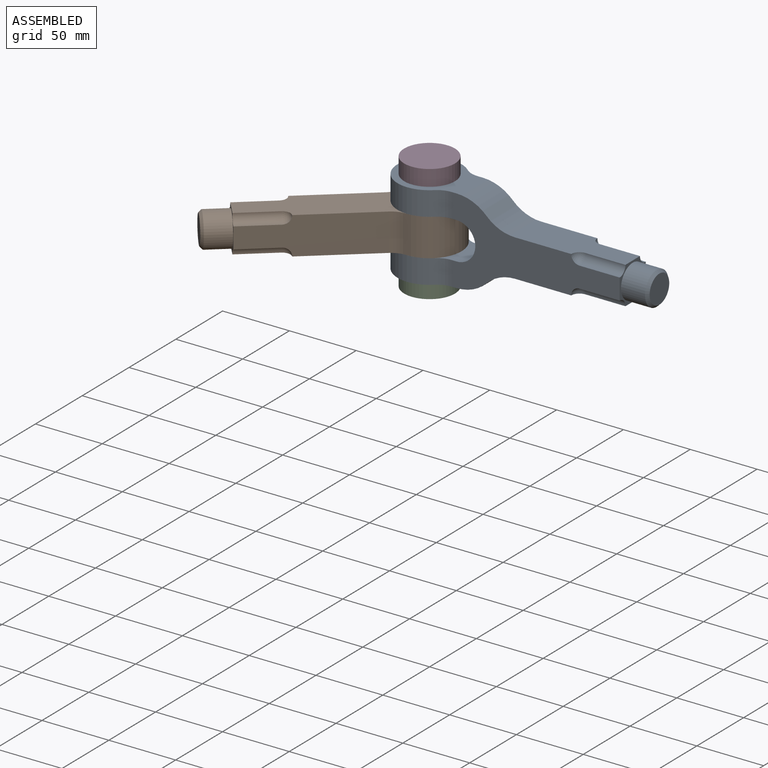
[diagram: assembled view]
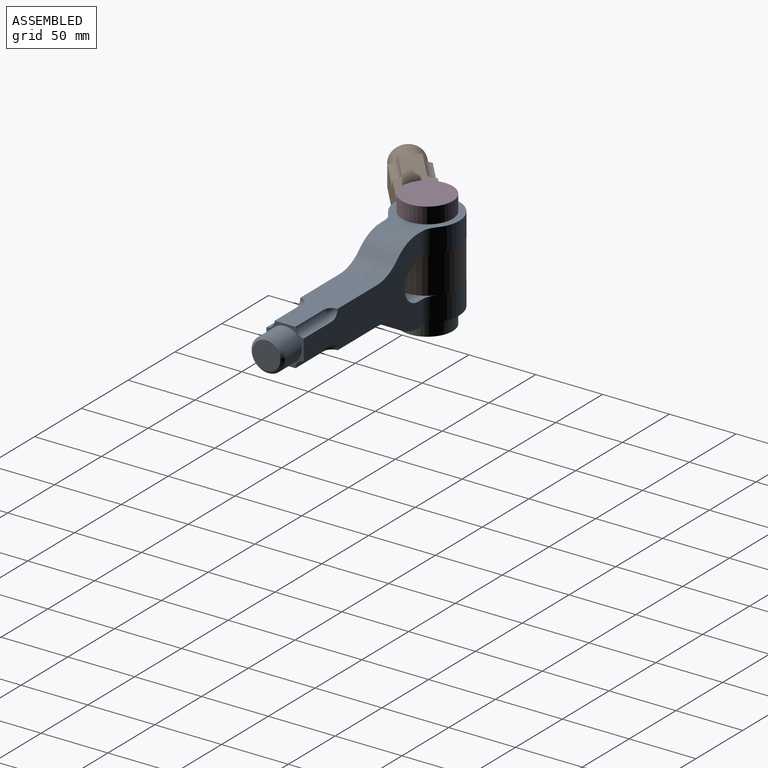
[diagram: assembled view, second angle]
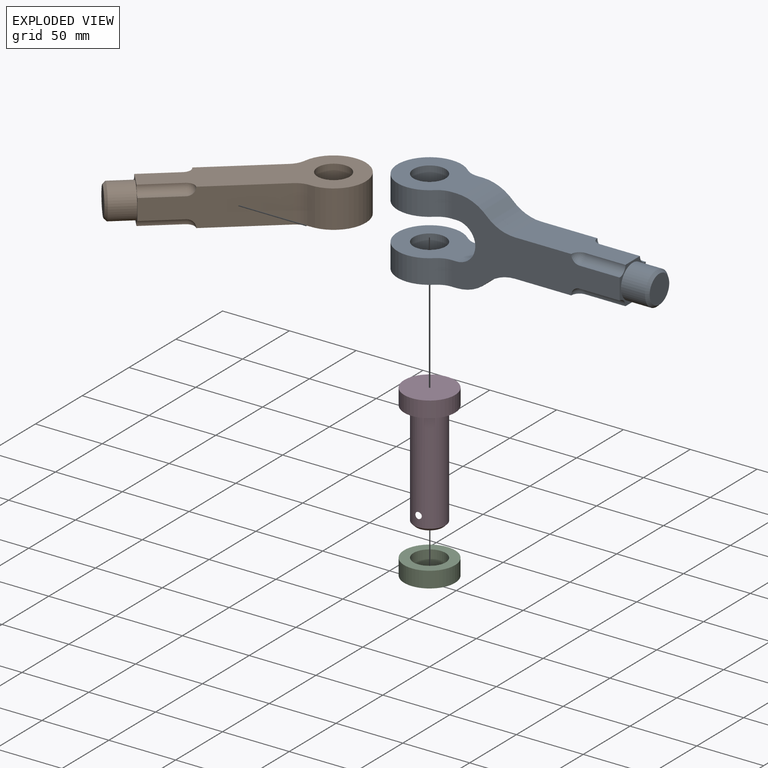
[diagram: exploded view]
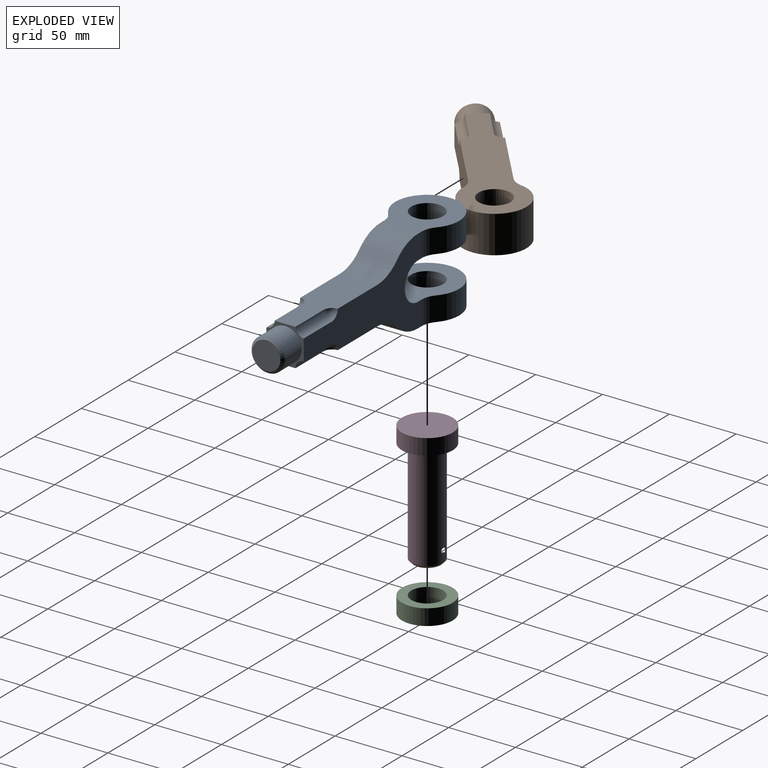
[diagram: exploded view, second angle]
ASSEMBLY  parts=4 mates=3
PART A: 33 faces, bbox 196x48x64 mm
  f0: plane 28x28mm, normal (-1,0,0), area 171.6mm2, adj f2,f3,f14,f15,f16,f18,f20,f22
  f1: cylinder r=32mm len=28mm, axis (0,1,0), area 700.5mm2, adj f2,f3,f6,f32
  f2: plane 125.92x64mm, normal (0,-1,0), area 3611.2mm2, adj f0,f1,f4,f5,f6,f7,f8,f9
  f3: plane 125.92x64mm, normal (0,1,0), area 3611.2mm2, adj f0,f1,f4,f5,f6,f7,f8,f9
  f4: plane 54x48mm, normal (0,0,1), area 1575.5mm2, adj f2,f3,f5,f10,f11,f29,f30
  f5: cylinder r=32mm len=28mm, axis (0,1,0), area 700.5mm2, adj f2,f3,f4,f31
  f6: plane 54x48mm, normal (0,0,-1), area 1575.5mm2, adj f1,f2,f3,f12,f13,f27,f28
  f7: plane 54x48mm, normal (0,0,1), area 1575.5mm2, adj f2,f3,f8,f12,f13,f27,f28
  f8: cylinder r=14mm len=28mm, axis (0,1,0), area 1231.5mm2, adj f2,f3,f7,f9
  f9: plane 54x48mm, normal (0,0,-1), area 1575.5mm2, adj f2,f3,f8,f10,f11,f29,f30
  f10: cylinder r=12mm len=24mm, axis (0,0,1), area 1357.2mm2, adj f4,f9
  f11: cylinder r=24mm len=48mm, axis (0,0,1), area 1989.9mm2, adj f4,f9,f29,f30
  f12: cylinder r=12mm len=24mm, axis (0,0,-1), area 1357.2mm2, adj f6,f7
  f13: cylinder r=24mm len=48mm, axis (0,0,-1), area 1989.9mm2, adj f6,f7,f27,f28
  f14: plane 78.32x28mm, normal (0,0,1), area 1759mm2, adj f0,f2,f3,f16,f17,f18,f19,f31
  f15: plane 78.32x28mm, normal (0,0,-1), area 1759mm2, adj f0,f2,f3,f20,f21,f22,f23,f32
  f16: cylinder r=6.22mm len=30mm, axis (-1,0,0), area 293.1mm2, adj f0,f2,f14,f17
  f17: sphere r=6.22mm, area 60.8mm2, adj f2,f14,f16
  f18: cylinder r=6.22mm len=30mm, axis (-1,0,0), area 293.1mm2, adj f0,f3,f14,f19
  f19: sphere r=6.22mm, area 60.8mm2, adj f3,f14,f18
  f20: cylinder r=6.22mm len=30mm, axis (-1,0,0), area 293.1mm2, adj f0,f2,f15,f21
  f21: sphere r=6.22mm, area 60.8mm2, adj f2,f15,f20
  f22: cylinder r=6.22mm len=30mm, axis (-1,0,0), area 293.1mm2, adj f0,f3,f15,f23
  f23: sphere r=6.22mm, area 60.8mm2, adj f3,f15,f22
  f24: cylinder r=12.5mm len=25mm, axis (1,0,0), area 1413.7mm2, adj f0,f26
  f25: plane 21x21mm, normal (-1,0,0), area 346.4mm2, adj f26
  f26: cone r=10.5mm half-angle=45deg, axis (1,0,0), area 204.4mm2, adj f24,f25
  f27: cylinder r=15mm len=18mm, axis (0,0,-1), area 197.7mm2, adj f2,f6,f7,f13
  f28: cylinder r=15mm len=18mm, axis (0,0,-1), area 197.7mm2, adj f3,f6,f7,f13
  f29: cylinder r=15mm len=18mm, axis (0,0,1), area 197.7mm2, adj f2,f4,f9,f11
  f30: cylinder r=15mm len=18mm, axis (0,0,1), area 197.7mm2, adj f3,f4,f9,f11
  f31: cylinder r=30mm len=28mm, axis (0,1,0), area 656.7mm2, adj f2,f3,f5,f14
  f32: cylinder r=30mm len=28mm, axis (0,1,0), area 656.7mm2, adj f1,f2,f3,f15
PART B: 20 faces, bbox 48x28x166 mm
  f0: plane 28x28mm, normal (0,0,1), area 171.6mm2, adj f3,f4,f5,f6,f8,f9,f11,f13
  f1: cylinder r=24mm len=48mm, axis (0,1,0), area 3095.5mm2, adj f3,f4,f18,f19
  f2: cylinder r=12mm len=28mm, axis (0,1,0), area 2111.2mm2, adj f3,f4
  f3: plane 146x48mm, normal (0,-1,0), area 3717.6mm2, adj f0,f1,f2,f5,f6,f9,f10,f13
  f4: plane 146x48mm, normal (0,1,0), area 3717.6mm2, adj f0,f1,f2,f5,f6,f7,f8,f11
  f5: plane 95.92x28mm, normal (-1,0,0), area 2251.9mm2, adj f0,f3,f4,f7,f8,f9,f10,f19
  f6: plane 95.92x28mm, normal (1,0,0), area 2251.9mm2, adj f0,f3,f4,f11,f12,f13,f14,f18
  f7: sphere r=6.22mm, area 60.8mm2, adj f4,f5,f8
  f8: cylinder r=6.22mm len=30mm, axis (0,0,1), area 293.1mm2, adj f0,f4,f5,f7
  f9: cylinder r=6.22mm len=30mm, axis (0,0,1), area 293.1mm2, adj f0,f3,f5,f10
  f10: sphere r=6.22mm, area 60.8mm2, adj f3,f5,f9
  f11: cylinder r=6.22mm len=30mm, axis (0,0,1), area 293.1mm2, adj f0,f4,f6,f12
  f12: sphere r=6.22mm, area 60.8mm2, adj f4,f6,f11
  f13: cylinder r=6.22mm len=30mm, axis (0,0,1), area 293.1mm2, adj f0,f3,f6,f14
  f14: sphere r=6.22mm, area 60.8mm2, adj f3,f6,f13
  f15: cylinder r=12.5mm len=25mm, axis (0,0,-1), area 1413.7mm2, adj f0,f17
  f16: plane 21x21mm, normal (0,0,1), area 346.4mm2, adj f17
  f17: cone r=10.5mm half-angle=45deg, axis (0,0,-1), area 204.4mm2, adj f15,f16
  f18: cylinder r=15mm len=28mm, axis (0,1,0), area 307.6mm2, adj f1,f3,f4,f6
  f19: cylinder r=15mm len=28mm, axis (0,1,0), area 307.6mm2, adj f1,f3,f4,f5
PART C: 4 faces, bbox 38x38x12 mm
  f0: cylinder r=12mm len=24mm, axis (0,0,-1), area 904.8mm2, adj f2,f3
  f1: cylinder r=19mm len=38mm, axis (0,0,-1), area 1432.6mm2, adj f2,f3
  f2: plane 38x38mm, normal (0,0,1), area 681.7mm2, adj f0,f1
  f3: plane 38x38mm, normal (0,0,-1), area 681.7mm2, adj f0,f1
PART D: 7 faces, bbox 38x38x92 mm
  f0: cylinder r=19mm len=38mm, axis (0,0,-1), area 1432.6mm2, adj f1,f2
  f1: plane 38x38mm, normal (0,0,1), area 1134.1mm2, adj f0
  f2: plane 38x38mm, normal (0,0,-1), area 681.7mm2, adj f0,f3
  f3: cylinder r=12mm len=78mm, axis (0,0,1), area 5849.1mm2, adj f2,f5,f6
  f4: plane 20x20mm, normal (0,0,-1), area 314.2mm2, adj f5
  f5: cone r=10mm half-angle=45deg, axis (0,0,1), area 195.5mm2, adj f3,f4
  f6: cone r=2mm half-angle=0.7deg, axis (0,-1,0), area 336.3mm2, adj f3
PLACE A rot(axis=(0,0,1),180deg) t=(60,0,0)mm fixed
PLACE B rot(axis=(0.83,-0.39,-0.39),100.3deg) t=(30,0,0)mm
PLACE C rot(axis=(-1,0,0),0deg) t=(30,0,-38)mm
PLACE D rot(axis=(-1,0,0),0deg) t=(30,0,32)mm
MATE revolute B.f2 <-> A.f10  axis (0,0,-1) through (30,0,-14)mm
MATE revolute C.f0 <-> A.f10  axis (0,0,-1) through (30,0,-32)mm
MATE revolute D.f3 <-> A.f10  axis (0,0,1) through (30,0,32)mm
